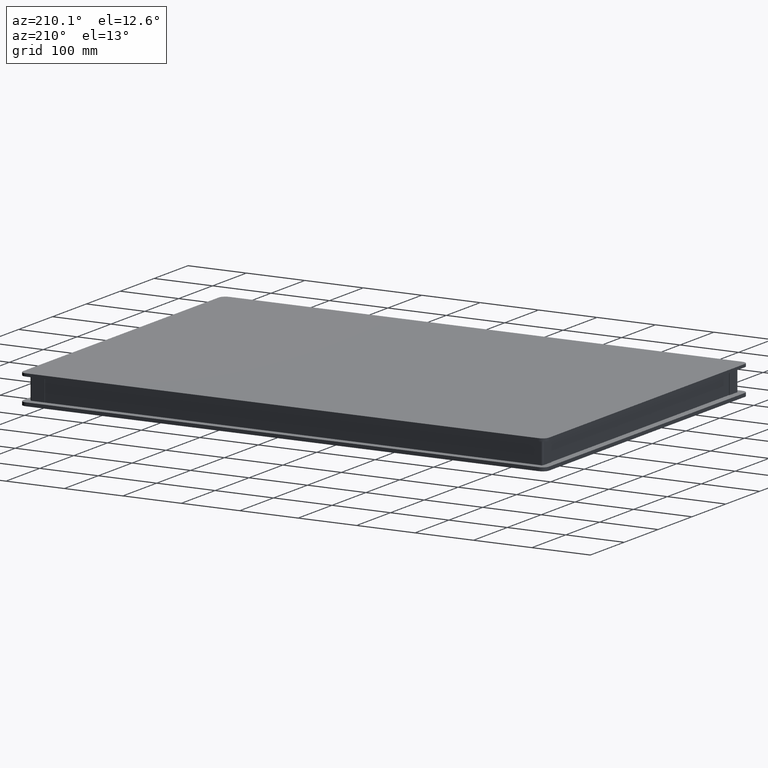
[diagram: clean part render]
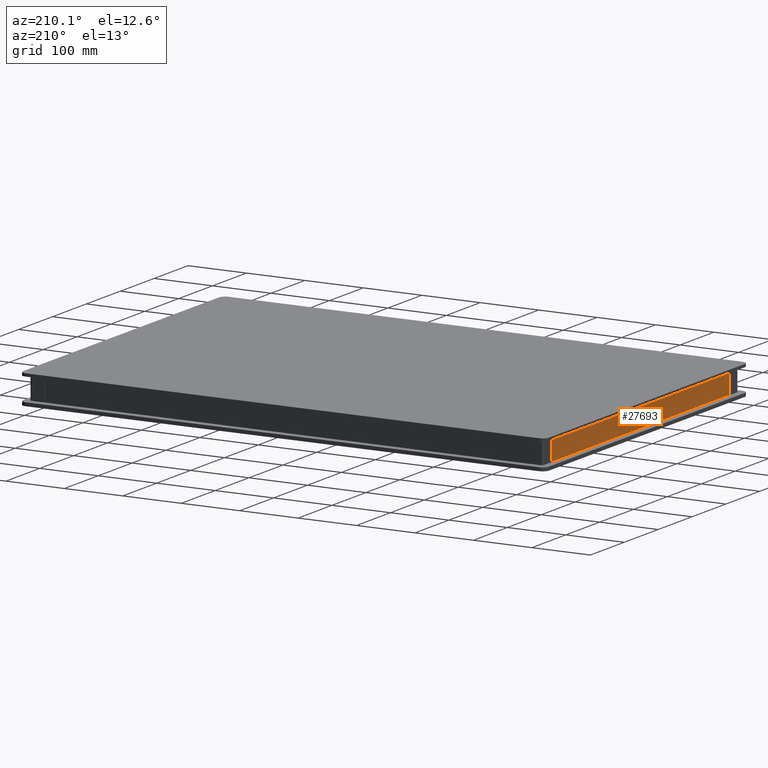
[diagram: same view with one face highlighted and labeled with its STEP entity id]
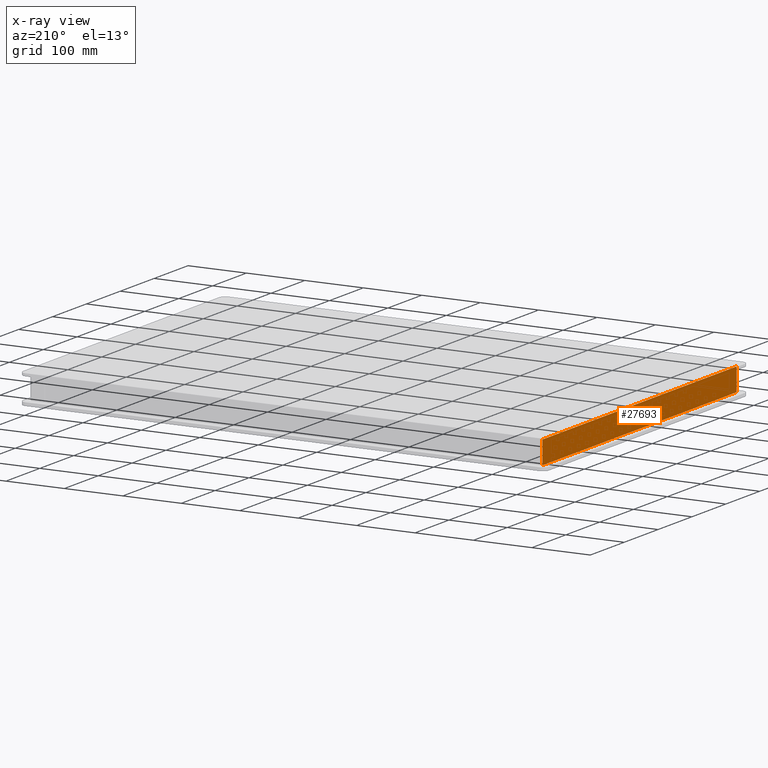
[diagram: x-ray of the same camera — body ghosted, the highlighted face saturated]
A machine part, auxiliary view. The second image highlights one B-rep face of the part: STEP entity #27693.
The next image is the same camera in x-ray: the body ghosted, the highlighted face saturated — about 0% of this face is hidden behind the body in this view.
In plain terms, the highlighted planar face has unit normal (1, 0, 0).
Its self-contained STEP definition (entity closure, byte-faithful):
#871 = DIRECTION ( 'NONE',  ( -0.000000000000000000, -0.000000000000000000, 1.000000000000000000 ) ) ;
#874 = EDGE_CURVE ( 'NONE', #60803, #38082, #35570, .T. ) ;
#901 = VERTEX_POINT ( 'NONE', #21212 ) ;
#1149 = EDGE_CURVE ( 'NONE', #17497, #21722, #52396, .T. ) ;
#1227 = CARTESIAN_POINT ( 'NONE',  ( -483.3666142378505697, 295.7012482578219306, -355.5013852687678764 ) ) ;
#1890 = LINE ( 'NONE', #49674, #53742 ) ;
#3376 = DIRECTION ( 'NONE',  ( 0.000000000000000000, -1.000000000000000000, -0.000000000000000000 ) ) ;
#3406 = ORIENTED_EDGE ( 'NONE', *, *, #4970, .T. ) ;
#3707 = CARTESIAN_POINT ( 'NONE',  ( -483.3666142378505697, 595.9691974502527501, -355.0013852687700364 ) ) ;
#4970 = EDGE_CURVE ( 'NONE', #38253, #38082, #17406, .T. ) ;
#5556 = AXIS2_PLACEMENT_3D ( 'NONE', #42759, #41825, #13382 ) ;
#5637 = ORIENTED_EDGE ( 'NONE', *, *, #42136, .T. ) ;
#7454 = DIRECTION ( 'NONE',  ( 2.670884459509479522E-33, 7.703719777548941702E-34, -1.000000000000000000 ) ) ;
#8041 = CARTESIAN_POINT ( 'NONE',  ( -483.3666142378505697, 595.9691974502527501, -393.5013852687679332 ) ) ;
#8968 = ORIENTED_EDGE ( 'NONE', *, *, #29940, .T. ) ;
#11911 = ORIENTED_EDGE ( 'NONE', *, *, #47560, .F. ) ;
#12358 = CARTESIAN_POINT ( 'NONE',  ( -483.3666142378505697, -278.0308025497471363, -355.5013852687678764 ) ) ;
#12757 = CARTESIAN_POINT ( 'NONE',  ( -483.3666142378505697, 295.9691974502528637, -394.0013852687679901 ) ) ;
#13095 = CARTESIAN_POINT ( 'NONE',  ( -483.3666142378505697, 295.9691974502528637, -445.0013852687678764 ) ) ;
#13382 = DIRECTION ( 'NONE',  ( 0.000000000000000000, 0.000000000000000000, -1.000000000000000000 ) ) ;
#13983 = VERTEX_POINT ( 'NONE', #42796 ) ;
#14270 = CARTESIAN_POINT ( 'NONE',  ( -483.3666142378505697, 293.9691974502530911, -393.5013852687679332 ) ) ;
#15024 = CARTESIAN_POINT ( 'NONE',  ( -483.3666142378505697, -278.0308025497470794, -393.5013852687679332 ) ) ;
#17406 = LINE ( 'NONE', #8041, #34754 ) ;
#17443 = CARTESIAN_POINT ( 'NONE',  ( -483.3666142378505697, -277.7628533573160894, -355.5013852687678764 ) ) ;
#17497 = VERTEX_POINT ( 'NONE', #12757 ) ;
#17814 = LINE ( 'NONE', #13095, #53799 ) ;
#19074 = CARTESIAN_POINT ( 'NONE',  ( -483.3666142378505697, -278.0308025497471363, -445.0013852687678764 ) ) ;
#19303 = CARTESIAN_POINT ( 'NONE',  ( -483.3666142378505697, 295.9691974502528637, -445.0013852687678764 ) ) ;
#19361 = DIRECTION ( 'NONE',  ( 0.000000000000000000, 0.000000000000000000, -1.000000000000000000 ) ) ;
#19818 = ORIENTED_EDGE ( 'NONE', *, *, #33320, .T. ) ;
#21212 = CARTESIAN_POINT ( 'NONE',  ( -483.3666142378505697, 295.9691974502528637, -355.0013852687700364 ) ) ;
#21722 = VERTEX_POINT ( 'NONE', #27225 ) ;
#21958 = DIRECTION ( 'NONE',  ( -0.000000000000000000, -1.000000000000000000, -0.000000000000000000 ) ) ;
#23031 = EDGE_CURVE ( 'NONE', #60831, #38253, #28475, .T. ) ;
#25945 = VECTOR ( 'NONE', #49633, 1000.000000000000000 ) ;
#26321 = LINE ( 'NONE', #50364, #40838 ) ;
#26844 = LINE ( 'NONE', #3707, #55794 ) ;
#27225 = CARTESIAN_POINT ( 'NONE',  ( -483.3666142378505697, 295.9691974502528637, -393.5013852687679332 ) ) ;
#27260 = ORIENTED_EDGE ( 'NONE', *, *, #56435, .T. ) ;
#27693 = ADVANCED_FACE ( 'NONE', ( #28395 ), #42428, .F. ) ;
#28395 = FACE_OUTER_BOUND ( 'NONE', #42522, .T. ) ;
#28475 = LINE ( 'NONE', #51580, #34358 ) ;
#29940 = EDGE_CURVE ( 'NONE', #60803, #55002, #1890, .T. ) ;
#33035 = CARTESIAN_POINT ( 'NONE',  ( -483.3666142378505697, 295.7012482578219306, -393.5013852687679332 ) ) ;
#33320 = EDGE_CURVE ( 'NONE', #55002, #37200, #42179, .T. ) ;
#33414 = DIRECTION ( 'NONE',  ( 0.000000000000000000, -0.000000000000000000, 1.000000000000000000 ) ) ;
#34241 = LINE ( 'NONE', #14270, #48557 ) ;
#34358 = VECTOR ( 'NONE', #37504, 1000.000000000000000 ) ;
#34549 = DIRECTION ( 'NONE',  ( 0.000000000000000000, -1.000000000000000000, 0.000000000000000000 ) ) ;
#34754 = VECTOR ( 'NONE', #60516, 1000.000000000000000 ) ;
#35251 = CARTESIAN_POINT ( 'NONE',  ( -483.3666142378505697, -277.7628533573160894, -355.5013852687678764 ) ) ;
#35570 = LINE ( 'NONE', #17443, #46087 ) ;
#36534 = VECTOR ( 'NONE', #19361, 1000.000000000000000 ) ;
#37161 = ORIENTED_EDGE ( 'NONE', *, *, #58418, .F. ) ;
#37200 = VERTEX_POINT ( 'NONE', #51429 ) ;
#37504 = DIRECTION ( 'NONE',  ( 0.000000000000000000, -0.000000000000000000, 1.000000000000000000 ) ) ;
#38082 = VERTEX_POINT ( 'NONE', #60040 ) ;
#38253 = VERTEX_POINT ( 'NONE', #15024 ) ;
#38393 = CARTESIAN_POINT ( 'NONE',  ( -483.3666142378505697, 295.9691974502528637, -355.5013852687678764 ) ) ;
#38726 = LINE ( 'NONE', #1227, #36534 ) ;
#39681 = DIRECTION ( 'NONE',  ( 0.000000000000000000, -1.000000000000000000, -7.703719777548941702E-34 ) ) ;
#39936 = LINE ( 'NONE', #58984, #25945 ) ;
#40838 = VECTOR ( 'NONE', #21958, 1000.000000000000000 ) ;
#40870 = VERTEX_POINT ( 'NONE', #38393 ) ;
#41255 = EDGE_CURVE ( 'NONE', #21722, #43858, #34241, .T. ) ;
#41445 = ORIENTED_EDGE ( 'NONE', *, *, #23031, .T. ) ;
#41825 = DIRECTION ( 'NONE',  ( 1.000000000000000000, 0.000000000000000000, 0.000000000000000000 ) ) ;
#42136 = EDGE_CURVE ( 'NONE', #13983, #43858, #38726, .T. ) ;
#42179 = LINE ( 'NONE', #19074, #48545 ) ;
#42428 = PLANE ( 'NONE',  #5556 ) ;
#42522 = EDGE_LOOP ( 'NONE', ( #5637, #45569, #53776, #27260, #41445, #3406, #43904, #8968, #19818, #11911, #59910, #37161 ) ) ;
#42759 = CARTESIAN_POINT ( 'NONE',  ( -483.3666142378505697, 595.9691974502527501, -445.0013852687678764 ) ) ;
#42796 = CARTESIAN_POINT ( 'NONE',  ( -483.3666142378505697, 295.7012482578219306, -355.5013852687678764 ) ) ;
#43858 = VERTEX_POINT ( 'NONE', #33035 ) ;
#43904 = ORIENTED_EDGE ( 'NONE', *, *, #874, .F. ) ;
#45569 = ORIENTED_EDGE ( 'NONE', *, *, #41255, .F. ) ;
#45887 = CARTESIAN_POINT ( 'NONE',  ( -483.3666142378505697, -278.0308025497470794, -394.0013852687678764 ) ) ;
#46087 = VECTOR ( 'NONE', #7454, 1000.000000000000000 ) ;
#47560 = EDGE_CURVE ( 'NONE', #901, #37200, #26844, .T. ) ;
#48545 = VECTOR ( 'NONE', #33414, 1000.000000000000000 ) ;
#48557 = VECTOR ( 'NONE', #34549, 1000.000000000000000 ) ;
#49633 = DIRECTION ( 'NONE',  ( 0.000000000000000000, 1.000000000000000000, 0.000000000000000000 ) ) ;
#49674 = CARTESIAN_POINT ( 'NONE',  ( -483.3666142378505697, 595.9691974502527501, -355.5013852687678764 ) ) ;
#50364 = CARTESIAN_POINT ( 'NONE',  ( -483.3666142378505697, 595.9691974502527501, -394.0013852687678764 ) ) ;
#51429 = CARTESIAN_POINT ( 'NONE',  ( -483.3666142378505697, -278.0308025497471363, -355.0013852687700364 ) ) ;
#51580 = CARTESIAN_POINT ( 'NONE',  ( -483.3666142378505697, -278.0308025497471363, -394.0013852687678764 ) ) ;
#51838 = DIRECTION ( 'NONE',  ( -0.000000000000000000, -0.000000000000000000, 1.000000000000000000 ) ) ;
#52396 = LINE ( 'NONE', #19303, #57027 ) ;
#53742 = VECTOR ( 'NONE', #39681, 1000.000000000000000 ) ;
#53776 = ORIENTED_EDGE ( 'NONE', *, *, #1149, .F. ) ;
#53799 = VECTOR ( 'NONE', #51838, 1000.000000000000000 ) ;
#55002 = VERTEX_POINT ( 'NONE', #12358 ) ;
#55794 = VECTOR ( 'NONE', #3376, 1000.000000000000000 ) ;
#56435 = EDGE_CURVE ( 'NONE', #17497, #60831, #26321, .T. ) ;
#56941 = EDGE_CURVE ( 'NONE', #40870, #901, #17814, .T. ) ;
#57027 = VECTOR ( 'NONE', #871, 1000.000000000000000 ) ;
#58418 = EDGE_CURVE ( 'NONE', #13983, #40870, #39936, .T. ) ;
#58984 = CARTESIAN_POINT ( 'NONE',  ( -483.3666142378505697, 293.9691974502530911, -355.5013852687678764 ) ) ;
#59910 = ORIENTED_EDGE ( 'NONE', *, *, #56941, .F. ) ;
#60040 = CARTESIAN_POINT ( 'NONE',  ( -483.3666142378505697, -277.7628533573160894, -393.5013852687679332 ) ) ;
#60516 = DIRECTION ( 'NONE',  ( -0.000000000000000000, 1.000000000000000000, 7.703719777548941702E-34 ) ) ;
#60803 = VERTEX_POINT ( 'NONE', #35251 ) ;
#60831 = VERTEX_POINT ( 'NONE', #45887 ) ;